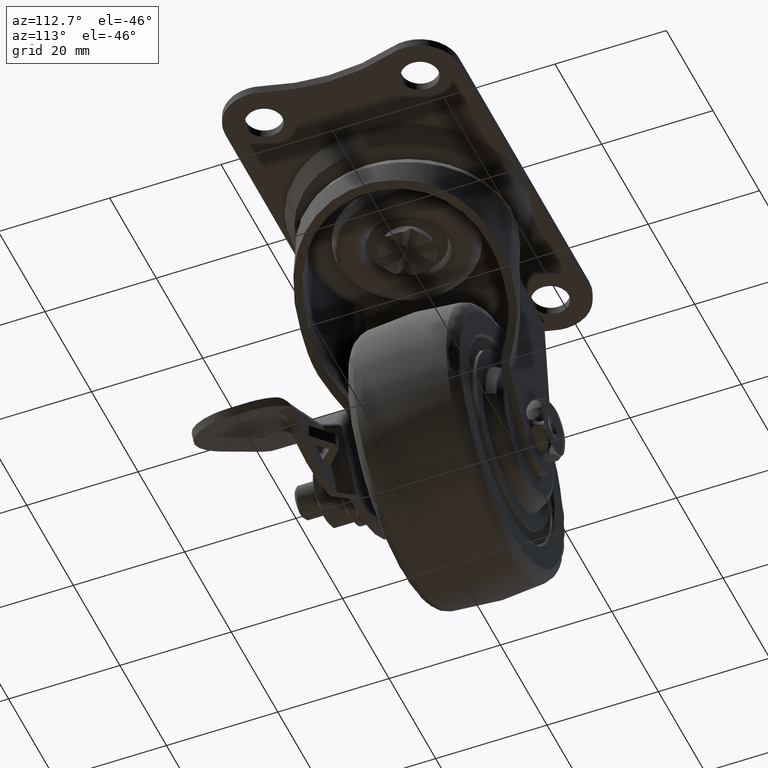
[diagram: clean part render]
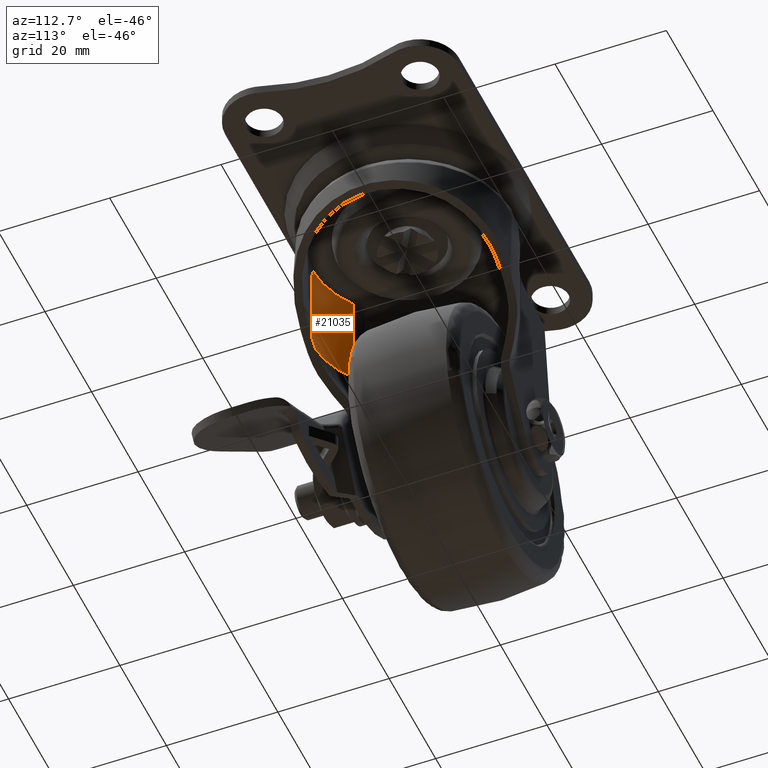
[diagram: same view with one face highlighted and labeled with its STEP entity id]
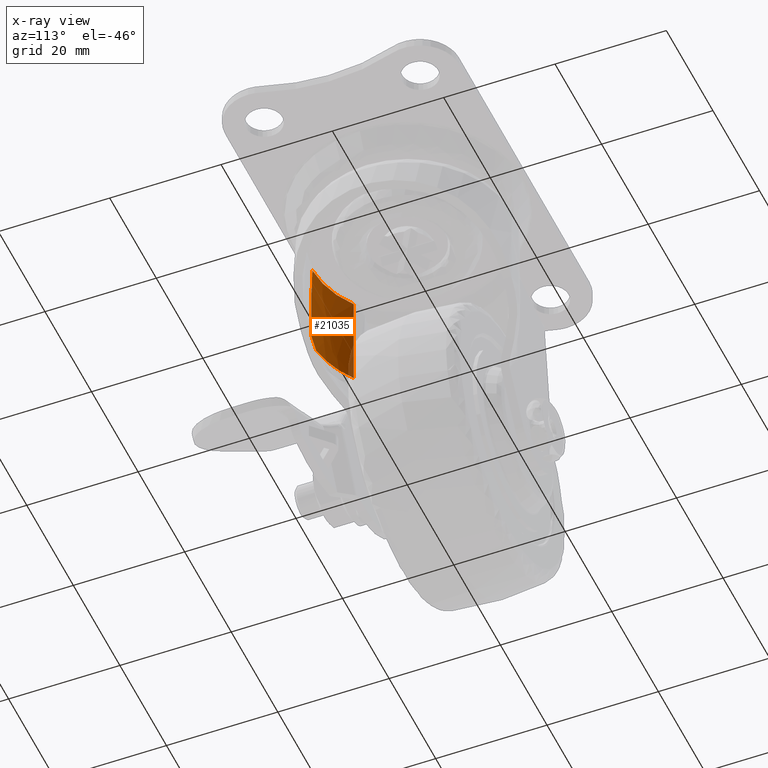
[diagram: x-ray of the same camera — body ghosted, the highlighted face saturated]
A machine part, auxiliary view. The second image highlights one B-rep face of the part: STEP entity #21035.
The next image is the same camera in x-ray: the body ghosted, the highlighted face saturated — about 4% of this face is hidden behind the body in this view.
In plain terms, the highlighted face is a freeform B-spline surface patch.
Its self-contained STEP definition (entity closure, byte-faithful):
#16672=CARTESIAN_POINT('',(-0.302119748293810,-17.197345624804200,-6.899055369699810));
#16673=VERTEX_POINT('',#16672);
#16802=CARTESIAN_POINT('',(-10.170361542353620,-13.870967741935459,-6.899998800000031));
#16803=VERTEX_POINT('',#16802);
#16826=CARTESIAN_POINT('',(-10.170361542353620,-13.870967741935459,-6.899998800000031));
#16827=CARTESIAN_POINT('',(-9.059597779423729,-14.685856416810330,-6.899879861725974));
#16828=CARTESIAN_POINT('',(-7.269663264214117,-15.692328467168640,-6.899697073760608));
#16829=CARTESIAN_POINT('',(-3.933222660625412,-16.852824099480561,-6.899377063664174));
#16830=CARTESIAN_POINT('',(-1.789753145294681,-17.171715435578520,-6.899183822296179));
#16831=CARTESIAN_POINT('',(-0.302119748293810,-17.197345624804200,-6.899055369699810));
#16832=B_SPLINE_CURVE_WITH_KNOTS('',3,(#16826,#16827,#16828,#16829,#16830,#16831),.UNSPECIFIED.,.F.,.U.,(4,1,1,4),(0.000000012246527,4.132749658799682,6.116453580317207,10.579829242862809),.UNSPECIFIED.);
#16833=EDGE_CURVE('',#16803,#16673,#16832,.T.);
#19244=CARTESIAN_POINT('',(-1.691512300403925,-17.116623093869350,-24.662143307080900));
#19245=VERTEX_POINT('',#19244);
#19258=CARTESIAN_POINT('',(-3.159484E-015,-17.199999999999999,-23.008265631960551));
#19259=VERTEX_POINT('',#19258);
#19260=CARTESIAN_POINT('',(-1.691512300403925,-17.116623093869350,-24.662143307080900));
#19261=CARTESIAN_POINT('',(-1.140532861564854,-17.171649022396458,-24.099697141842530));
#19262=CARTESIAN_POINT('',(-0.576071927749898,-17.199470983925089,-23.547795869545741));
#19263=CARTESIAN_POINT('',(-3.159484E-015,-17.199999999999999,-23.008265631960551));
#19264=B_SPLINE_CURVE_WITH_KNOTS('',3,(#19260,#19261,#19262,#19263),.UNSPECIFIED.,.F.,.U.,(4,4),(1.527822E-010,2.367822356272927),.UNSPECIFIED.);
#19265=EDGE_CURVE('',#19245,#19259,#19264,.T.);
#19949=CARTESIAN_POINT('',(-10.170361542353620,-13.870967741935459,-24.557849696605000));
#19950=VERTEX_POINT('',#19949);
#20125=CARTESIAN_POINT('',(-10.170361542353620,-13.870967741935459,-24.557849696605000));
#20126=CARTESIAN_POINT('',(-8.974303539181474,-14.748451898850471,-24.519013145757640));
#20127=CARTESIAN_POINT('',(-6.901824052092709,-15.888584214577930,-24.500251921754540));
#20128=CARTESIAN_POINT('',(-3.966249042910268,-16.792687955362180,-24.564385345685309));
#20129=CARTESIAN_POINT('',(-2.405214343457638,-17.046249328703311,-24.627482461423849));
#20130=CARTESIAN_POINT('',(-1.691512300403925,-17.116623093869350,-24.662143307080900));
#20131=B_SPLINE_CURVE_WITH_KNOTS('',3,(#20125,#20126,#20127,#20128,#20129,#20130),.UNSPECIFIED.,.F.,.U.,(4,1,1,4),(0.000000010647723,4.451631521714574,7.036430218450832,9.190438593516841),.UNSPECIFIED.);
#20132=EDGE_CURVE('',#19950,#19245,#20131,.T.);
#20709=CARTESIAN_POINT('',(-10.170361542353620,-13.870967741935459,-6.899998800000031));
#20710=CARTESIAN_POINT('',(-10.170361542353620,-13.870967741935459,-24.557849696605000));
#20711=QUASI_UNIFORM_CURVE('',1,(#20709,#20710),.UNSPECIFIED.,.F.,.U.);
#20712=EDGE_CURVE('',#16803,#19950,#20711,.T.);
#20788=CARTESIAN_POINT('',(-3.159484E-015,-17.199999999999999,-12.507347990962760));
#20789=VERTEX_POINT('',#20788);
#20790=CARTESIAN_POINT('',(-3.159484E-015,-17.199999999999999,-12.507347990962760));
#20791=CARTESIAN_POINT('',(-0.040972104863777,-17.199915470135341,-11.746794843194570));
#20792=CARTESIAN_POINT('',(-0.122914546974565,-17.199746414052790,-10.225721359408910));
#20793=CARTESIAN_POINT('',(-0.223621065591423,-17.198619109293009,-8.356290491521223));
#20794=CARTESIAN_POINT('',(-0.283354547571161,-17.197673807299839,-7.247412826172486));
#20795=CARTESIAN_POINT('',(-0.302119748293810,-17.197345624804200,-6.899055369699810));
#20796=B_SPLINE_CURVE_WITH_KNOTS('',3,(#20790,#20791,#20792,#20793,#20794,#20795),.UNSPECIFIED.,.F.,.U.,(4,1,1,4),(0.0,0.299997917124118,0.599982891751187,0.737391482493445),.UNSPECIFIED.);
#20797=EDGE_CURVE('',#20789,#16673,#20796,.T.);
#21009=CARTESIAN_POINT('',(0.450243510895440,-17.194105989579580,-25.106220505515431));
#21010=CARTESIAN_POINT('',(0.450243510895440,-17.194105989579580,-6.443876241304416));
#21011=CARTESIAN_POINT('',(-5.728139979033610,-17.355892655071230,-25.106220505515434));
#21012=CARTESIAN_POINT('',(-5.728139979033610,-17.355892655071230,-6.443876241304416));
#21013=CARTESIAN_POINT('',(-10.596453824393286,-13.548253258169515,-25.106220505515427));
#21014=CARTESIAN_POINT('',(-10.596453824393286,-13.548253258169515,-6.443876241304417));
#21022=(BOUNDED_SURFACE()B_SPLINE_SURFACE(1,2,((#21009,#21011,#21013),(#21010,#21012,#21014)),.UNSPECIFIED.,.F.,.F.,.U.)B_SPLINE_SURFACE_WITH_KNOTS((2,2),(3,3),(0.0,18.662344264211011),(0.0,11.985829434033660),.UNSPECIFIED.)GEOMETRIC_REPRESENTATION_ITEM()RATIONAL_B_SPLINE_SURFACE(((1.0,0.938986783528670,0.995540005561870),(1.0,0.938986783528670,0.995540005561870)))REPRESENTATION_ITEM('')SURFACE());
#21023=ORIENTED_EDGE('',*,*,#20712,.F.);
#21024=ORIENTED_EDGE('',*,*,#16833,.T.);
#21025=ORIENTED_EDGE('',*,*,#20797,.F.);
#21026=CARTESIAN_POINT('',(-3.159484E-015,-17.199999999999999,-23.008265631960551));
#21027=CARTESIAN_POINT('',(-3.159484E-015,-17.199999999999999,-12.507347990962760));
#21028=QUASI_UNIFORM_CURVE('',1,(#21026,#21027),.UNSPECIFIED.,.F.,.U.);
#21029=EDGE_CURVE('',#19259,#20789,#21028,.T.);
#21030=ORIENTED_EDGE('',*,*,#21029,.F.);
#21031=ORIENTED_EDGE('',*,*,#19265,.F.);
#21032=ORIENTED_EDGE('',*,*,#20132,.F.);
#21033=EDGE_LOOP('',(#21023,#21024,#21025,#21030,#21031,#21032));
#21034=FACE_OUTER_BOUND('',#21033,.T.);
#21035=ADVANCED_FACE('',(#21034),#21022,.F.);